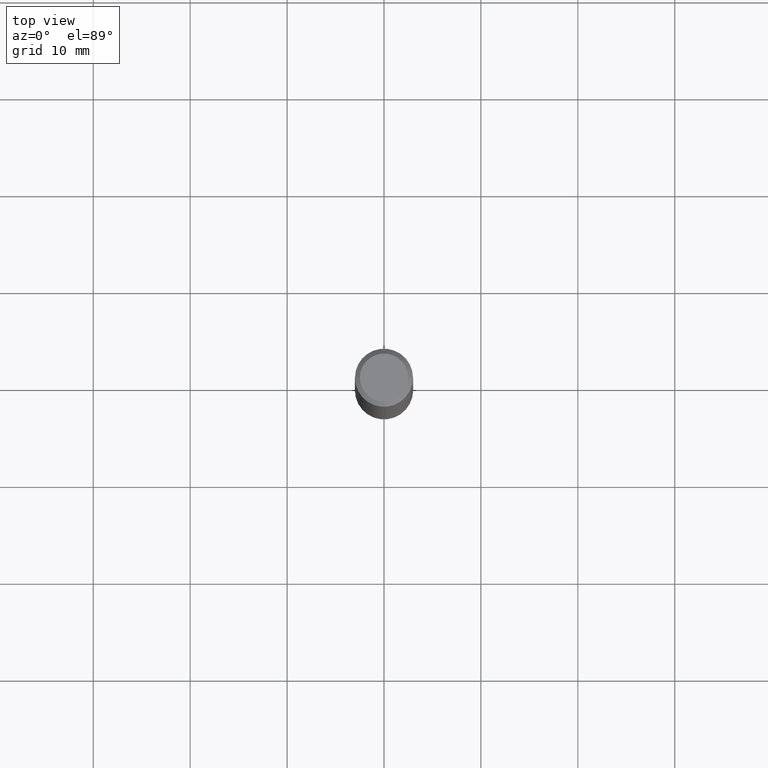
[diagram: clean part render]
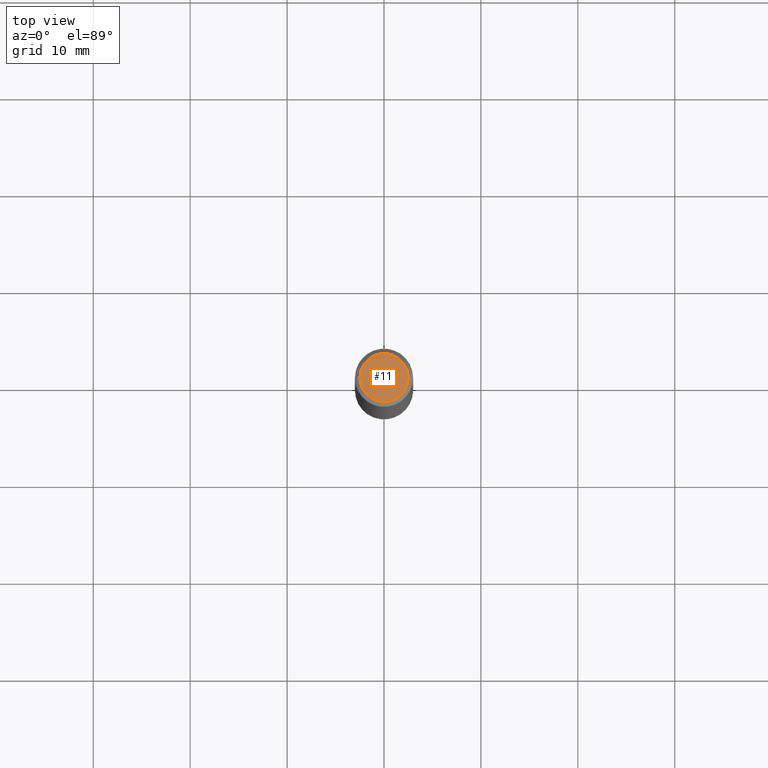
[diagram: same view with one face highlighted and labeled with its STEP entity id]
A machine part, top view. The second image highlights one B-rep face of the part: STEP entity #11.
In plain terms, the highlighted planar face has unit normal (0, -0, -1).
Its self-contained STEP definition (entity closure, byte-faithful):
#7 = VERTEX_POINT ( 'NONE', #255 ) ;
#11 = ADVANCED_FACE ( 'NONE', ( #358 ), #335, .F. ) ;
#13 = ORIENTED_EDGE ( 'NONE', *, *, #150, .T. ) ;
#47 = DIRECTION ( 'NONE',  ( -1.000000000000000000, 6.982962677686265922E-15, -4.876176775795935793E-29 ) ) ;
#64 = CARTESIAN_POINT ( 'NONE',  ( 2.087702828670439639E-46, -2.980686340760894400E-32, -8.537024980200822558E-18 ) ) ;
#69 = CARTESIAN_POINT ( 'NONE',  ( -0.09809999999999979847, 7.199434520694525264E-16, -8.537024980205735990E-18 ) ) ;
#86 = DIRECTION ( 'NONE',  ( -2.445468806185136597E-29, 3.491481338843145583E-15, 1.000000000000000000 ) ) ;
#90 = CARTESIAN_POINT ( 'NONE',  ( 2.087702828670439639E-46, -2.980686340760894400E-32, -8.537024980200822558E-18 ) ) ;
#95 = EDGE_CURVE ( 'NONE', #278, #7, #226, .T. ) ;
#150 = EDGE_CURVE ( 'NONE', #7, #278, #281, .T. ) ;
#159 = DIRECTION ( 'NONE',  ( -2.445468806185136597E-29, 3.491481338843145583E-15, 1.000000000000000000 ) ) ;
#186 = DIRECTION ( 'NONE',  ( 1.000000000000000000, -6.982962677686267499E-15, 4.876195163481342132E-29 ) ) ;
#203 = CARTESIAN_POINT ( 'NONE',  ( 6.850286386810212718E-16, 0.09809999999999979847, -3.467828318306122952E-16 ) ) ;
#215 = DIRECTION ( 'NONE',  ( 1.000000000000000000, -6.982962677686267499E-15, 4.876195163481342132E-29 ) ) ;
#226 = CIRCLE ( 'NONE', #321, 0.09809999999999979847 ) ;
#255 = CARTESIAN_POINT ( 'NONE',  ( 0.09809999999999979847, -7.765346469475326737E-16, -8.537024980195711910E-18 ) ) ;
#269 = ORIENTED_EDGE ( 'NONE', *, *, #95, .T. ) ;
#274 = AXIS2_PLACEMENT_3D ( 'NONE', #203, #311, #47 ) ;
#278 = VERTEX_POINT ( 'NONE', #69 ) ;
#281 = CIRCLE ( 'NONE', #349, 0.09809999999999979847 ) ;
#305 = EDGE_LOOP ( 'NONE', ( #269, #13 ) ) ;
#311 = DIRECTION ( 'NONE',  ( 2.438088387897960049E-29, -3.491481338843145188E-15, -1.000000000000000000 ) ) ;
#321 = AXIS2_PLACEMENT_3D ( 'NONE', #90, #86, #186 ) ;
#335 = PLANE ( 'NONE',  #274 ) ;
#349 = AXIS2_PLACEMENT_3D ( 'NONE', #64, #159, #215 ) ;
#358 = FACE_OUTER_BOUND ( 'NONE', #305, .T. ) ;